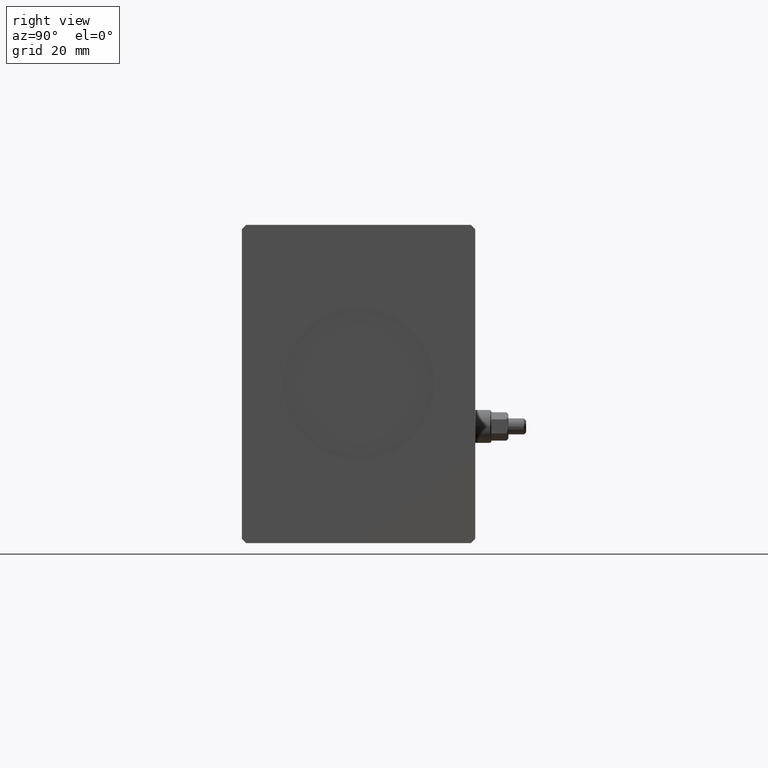
[diagram: clean part render]
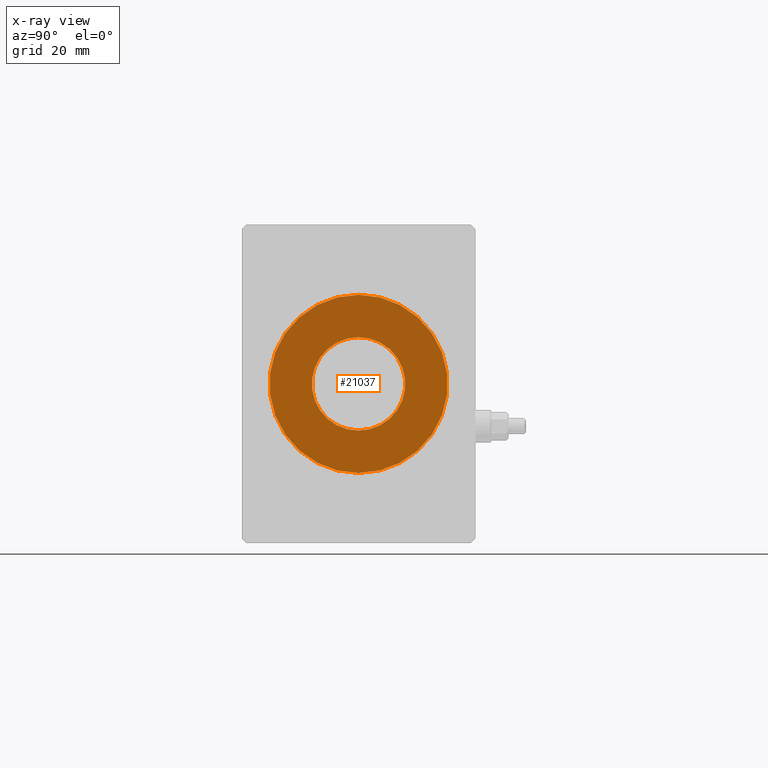
[diagram: x-ray — body ghosted, one internal face saturated and labeled with its STEP entity id]
A machine part, right view, then the same camera in x-ray: the body is ghosted and one INTERNAL B-rep face — a face not visible from any outside direction — is saturated and labeled: STEP entity #21037.
In plain terms, the highlighted planar face has unit normal (-1, 0, 0).
Its self-contained STEP definition (entity closure, byte-faithful):
#1350 = DIRECTION ( 'NONE',  ( -0.000000000000000000, 0.000000000000000000, 1.000000000000000000 ) ) ;
#1427 = DIRECTION ( 'NONE',  ( -0.000000000000000000, 0.000000000000000000, 1.000000000000000000 ) ) ;
#1486 = DIRECTION ( 'NONE',  ( 0.000000000000000000, 0.000000000000000000, 1.000000000000000000 ) ) ;
#1522 = FACE_BOUND ( 'NONE', #19033, .T. ) ;
#5479 = ORIENTED_EDGE ( 'NONE', *, *, #34777, .T. ) ;
#7824 = CARTESIAN_POINT ( 'NONE',  ( 0.000000000000000000, 0.000000000000000000, 0.000000000000000000 ) ) ;
#11013 = CARTESIAN_POINT ( 'NONE',  ( 0.000000000000000000, 0.000000000000000000, 0.000000000000000000 ) ) ;
#11964 = CIRCLE ( 'NONE', #27558, 11.00000000000000000 ) ;
#12771 = ORIENTED_EDGE ( 'NONE', *, *, #39901, .T. ) ;
#13735 = ORIENTED_EDGE ( 'NONE', *, *, #19317, .F. ) ;
#13914 = CARTESIAN_POINT ( 'NONE',  ( 0.000000000000000000, 0.000000000000000000, 0.000000000000000000 ) ) ;
#16371 = VERTEX_POINT ( 'NONE', #27404 ) ;
#16930 = VERTEX_POINT ( 'NONE', #26032 ) ;
#17026 = CARTESIAN_POINT ( 'NONE',  ( 0.000000000000000000, 0.000000000000000000, 0.000000000000000000 ) ) ;
#17101 = DIRECTION ( 'NONE',  ( 1.000000000000000000, 0.000000000000000000, 0.000000000000000000 ) ) ;
#17755 = CIRCLE ( 'NONE', #18453, 21.00000000000000000 ) ;
#18453 = AXIS2_PLACEMENT_3D ( 'NONE', #11013, #23967, #36927 ) ;
#18700 = EDGE_CURVE ( 'NONE', #31026, #19450, #34696, .T. ) ;
#19033 = EDGE_LOOP ( 'NONE', ( #12771, #5479 ) ) ;
#19317 = EDGE_CURVE ( 'NONE', #19450, #31026, #17755, .T. ) ;
#19450 = VERTEX_POINT ( 'NONE', #29875 ) ;
#20589 = FACE_OUTER_BOUND ( 'NONE', #28521, .T. ) ;
#20986 = DIRECTION ( 'NONE',  ( 1.000000000000000000, 0.000000000000000000, 0.000000000000000000 ) ) ;
#21037 = ADVANCED_FACE ( 'NONE', ( #20589, #1522 ), #36957, .F. ) ;
#21447 = DIRECTION ( 'NONE',  ( 0.000000000000000000, 0.000000000000000000, 1.000000000000000000 ) ) ;
#23967 = DIRECTION ( 'NONE',  ( 0.000000000000000000, 0.000000000000000000, 1.000000000000000000 ) ) ;
#26032 = CARTESIAN_POINT ( 'NONE',  ( 11.00000000000000000, 1.347111479062088405E-15, 0.000000000000000000 ) ) ;
#26605 = ORIENTED_EDGE ( 'NONE', *, *, #18700, .F. ) ;
#27282 = AXIS2_PLACEMENT_3D ( 'NONE', #39914, #21447, #37591 ) ;
#27404 = CARTESIAN_POINT ( 'NONE',  ( -11.00000000000000000, 0.000000000000000000, 0.000000000000000000 ) ) ;
#27558 = AXIS2_PLACEMENT_3D ( 'NONE', #13914, #1427, #17101 ) ;
#28521 = EDGE_LOOP ( 'NONE', ( #26605, #13735 ) ) ;
#29789 = DIRECTION ( 'NONE',  ( 1.000000000000000000, 0.000000000000000000, 0.000000000000000000 ) ) ;
#29875 = CARTESIAN_POINT ( 'NONE',  ( 21.00000000000000000, 2.571758278209441661E-15, 0.000000000000000000 ) ) ;
#31026 = VERTEX_POINT ( 'NONE', #33471 ) ;
#33105 = CIRCLE ( 'NONE', #33802, 11.00000000000000000 ) ;
#33471 = CARTESIAN_POINT ( 'NONE',  ( -21.00000000000000000, 0.000000000000000000, 0.000000000000000000 ) ) ;
#33802 = AXIS2_PLACEMENT_3D ( 'NONE', #17026, #1350, #29789 ) ;
#34696 = CIRCLE ( 'NONE', #40099, 21.00000000000000000 ) ;
#34777 = EDGE_CURVE ( 'NONE', #16930, #16371, #11964, .T. ) ;
#36927 = DIRECTION ( 'NONE',  ( 1.000000000000000000, 0.000000000000000000, 0.000000000000000000 ) ) ;
#36957 = PLANE ( 'NONE',  #27282 ) ;
#37591 = DIRECTION ( 'NONE',  ( 1.000000000000000000, 0.000000000000000000, -0.000000000000000000 ) ) ;
#39901 = EDGE_CURVE ( 'NONE', #16371, #16930, #33105, .T. ) ;
#39914 = CARTESIAN_POINT ( 'NONE',  ( 0.000000000000000000, 0.000000000000000000, 0.000000000000000000 ) ) ;
#40099 = AXIS2_PLACEMENT_3D ( 'NONE', #7824, #1486, #20986 ) ;